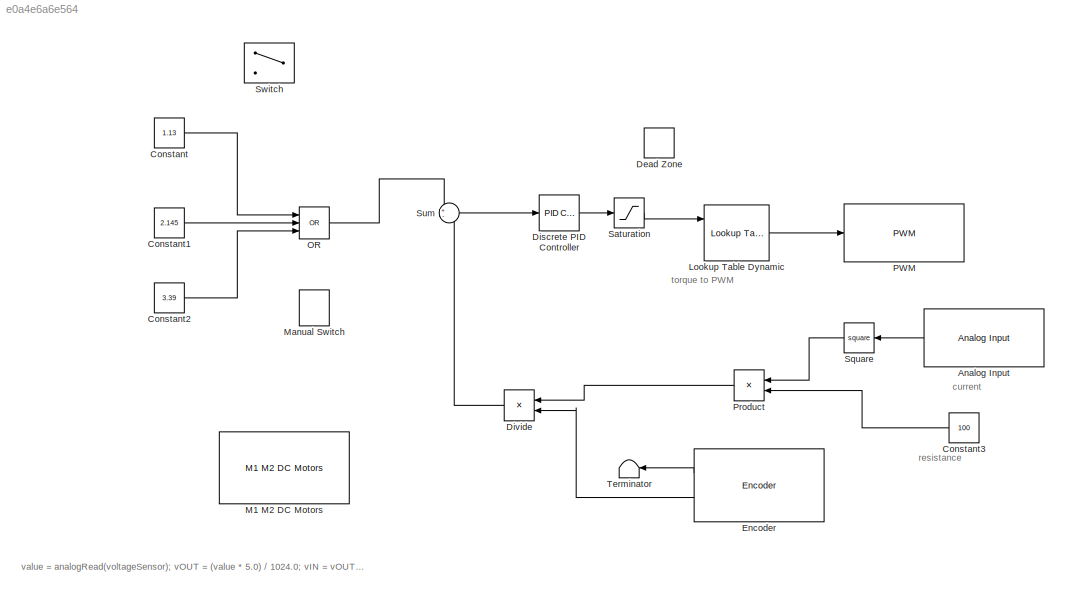
MODEL slx_e0a4e6a6e564
KIND model
CONFIG AbsTol = auto
CONFIG EnableMultiTasking = off
CONFIG FixedStep = auto
CONFIG MaxStep = auto
CONFIG MinStep = auto
CONFIG RelTol = 1e-3
CONFIG SampleTimeConstraint = Unconstrained
CONFIG Solver = VariableStepAuto
CONFIG SolverName = VariableStepAuto
CONFIG StartTime = 0.0
CONFIG StopTime = 10.0
BLOCK [Reference] Analog Input  REF=arduinolib/Analog Input
  Ports = [0, 1]
  SourceBlock = arduinolib/Analog Input
  SourceProductBaseCode = ARDUINO
  SourceType = Arduino Analog Input
BLOCK [Constant] Constant
  Value = 1.13
BLOCK [Constant] Constant1
  Value = 2.145
BLOCK [Constant] Constant2
  Value = 3.39
BLOCK [Constant] Constant3
  Value = 100
BLOCK [DeadZone] Dead Zone
  Commented = on
BLOCK [Reference] Discrete PID Controller  REF=simulink/Continuous/PID Controller
  Ports = [1, 1]
  SourceBlock = simulink/Continuous/PID Controller
  SourceProductBaseCode = SL
  SourceType = PID 1dof
BLOCK [Product] Divide
  Inputs = */
  Ports = [2, 1]
BLOCK [Reference] Encoder  REF=mkrmotorcarrierlib/Encoder
  Ports = [0, 2]
  SourceBlock = mkrmotorcarrierlib/Encoder
  SourceProductBaseCode = ARDUINO
  SourceType = motorcarrier.blocks.mkrmotorcarrier_Encoder
BLOCK [Reference] Lookup Table Dynamic  REF=simulink/Lookup
Tables/Lookup
Table
Dynamic
  Ports = [3, 1]
  SourceBlock = simulink/Lookup\nTables/Lookup\nTable\nDynamic
  SourceProductBaseCode = SL
  SourceType = Lookup Table Dynamic
BLOCK [Reference] M1 M2 DC Motors  REF=mkrmotorcarrierlib/M1 M2 DC Motors
  Commented = on
  Ports = [1]
  SourceBlock = mkrmotorcarrierlib/M1 M2 DC Motors
  SourceProductBaseCode = ARDUINO
  SourceType = DC Motor
BLOCK [ManualSwitch] Manual Switch
  Commented = on
  CurrentSetting = 0
BLOCK [Logic] OR
  AllPortsSameDT = off
  IconShape = distinctive
  Inputs = 3
  Operator = OR
  OutDataTypeStr = boolean
  Ports = [3, 1]
BLOCK [Reference] PWM  REF=arduinolib/PWM
  Ports = [1]
  SourceBlock = arduinolib/PWM
  SourceProductBaseCode = ARDUINO
  SourceType = Arduino PWM
BLOCK [Product] Product
  Ports = [2, 1]
BLOCK [Saturate] Saturation
BLOCK [Math] Square
  Operator = square
  Ports = [1, 1]
BLOCK [Sum] Sum
  Inputs = +-
  Ports = [2, 1]
BLOCK [Switch] Switch
  Criteria = u2 > Threshold
  InputSameDT = off
  SaturateOnIntegerOverflow = off
BLOCK [Terminator] Terminator
ANNOTATION (root): value = analogRead(voltageSensor); vOUT = (value * 5.0) / 1024.0; vIN = vOUT / (R2/(R1+R2));
ANNOTATION (root): current
ANNOTATION (root): resistance
ANNOTATION (root): torque to PWM
LINE Analog Input:1 -> Square:1
LINE Constant1:1 -> OR:2
LINE Constant2:1 -> OR:3
LINE Constant3:1 -> Product:2
LINE Constant:1 -> OR:1
LINE Discrete PID Controller:1 -> Saturation:1
LINE Divide:1 -> Sum:2
LINE Encoder:1 -> Terminator:1
LINE Encoder:2 -> Divide:2
LINE Lookup Table Dynamic:1 -> PWM:1
LINE OR:1 -> Sum:1
LINE Product:1 -> Divide:1
LINE Saturation:1 -> Lookup Table Dynamic:1
LINE Square:1 -> Product:1
LINE Sum:1 -> Discrete PID Controller:1
